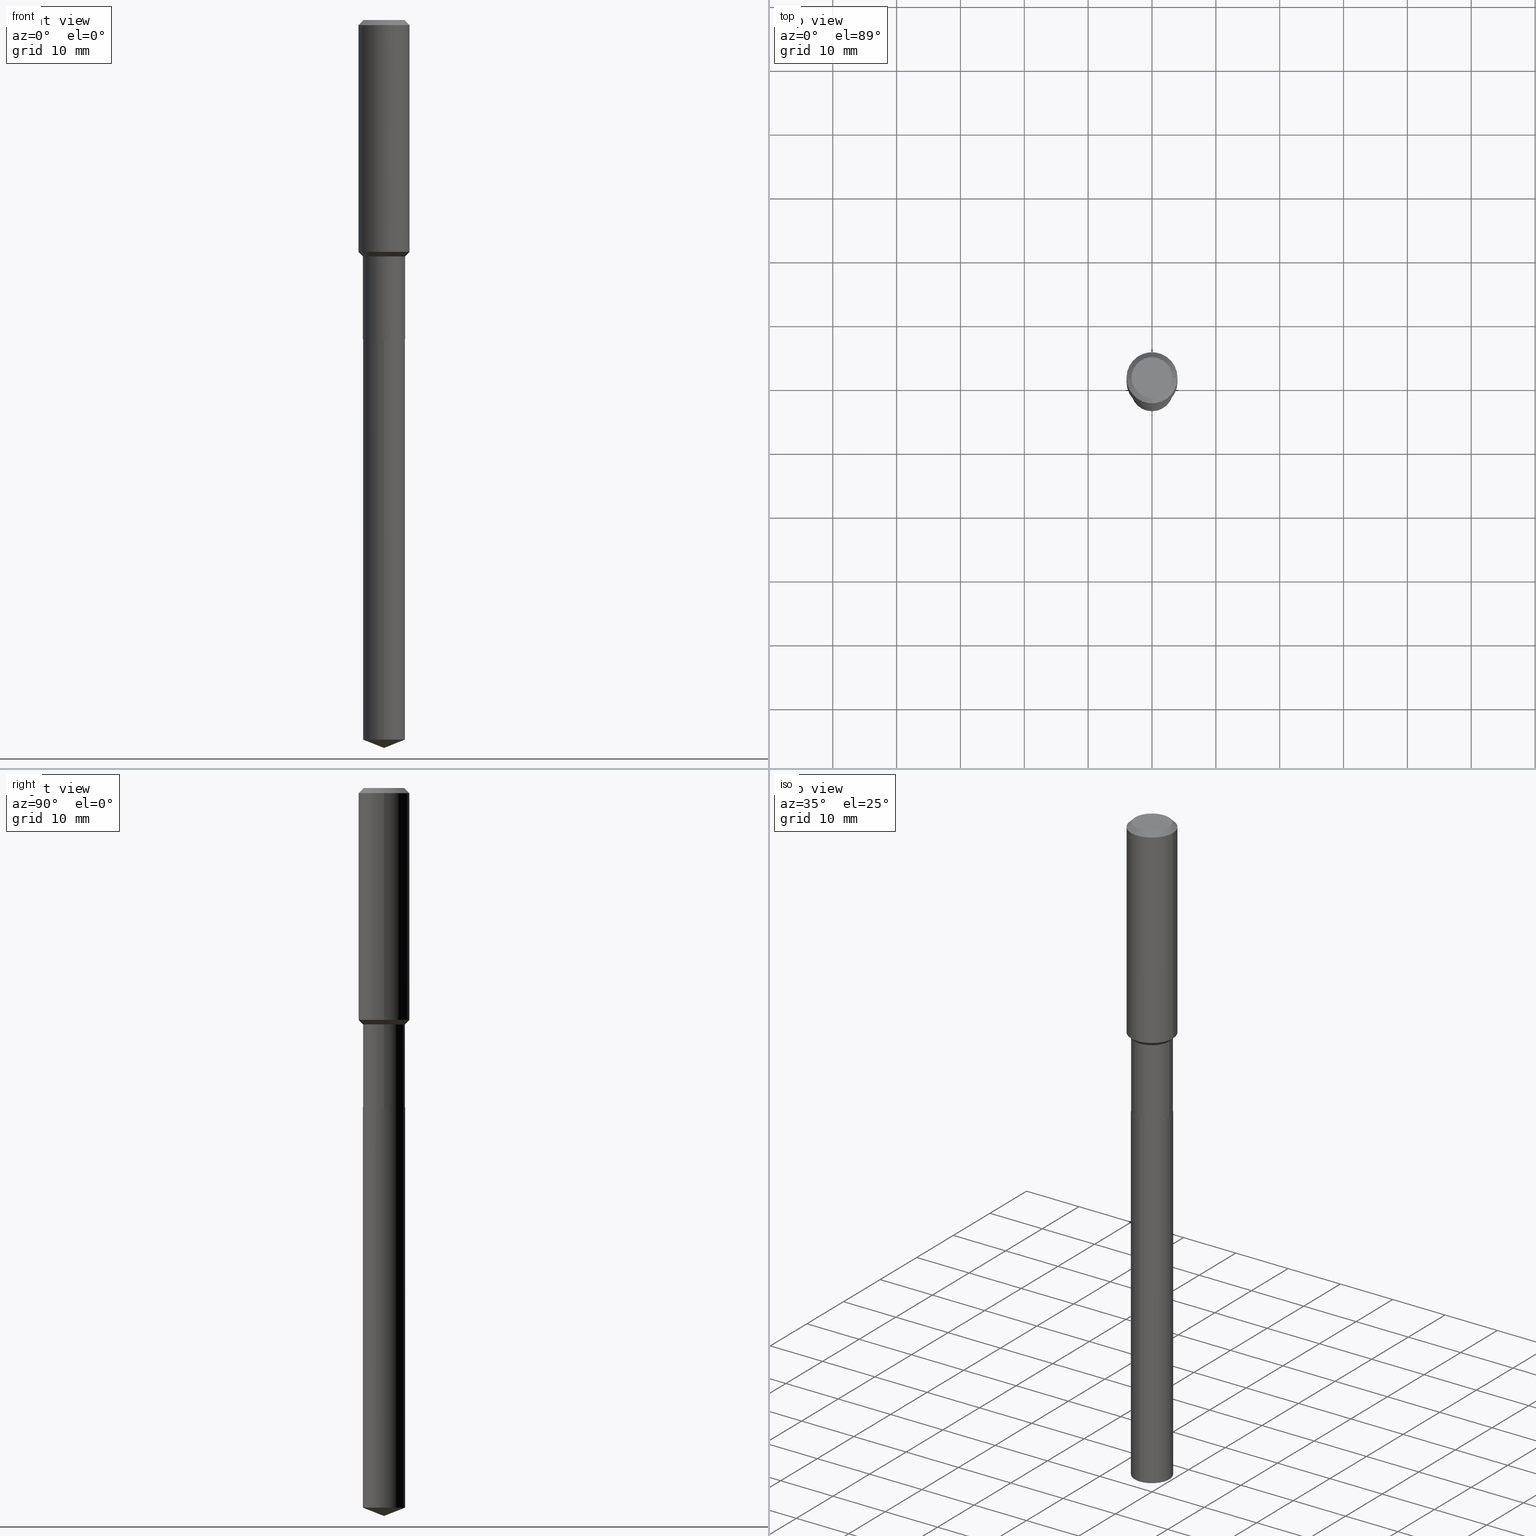
[diagram: canonical four-view strip — front | top / right | iso, engineering-drawing reading convention]
A machine part, canonical four-view strip (front | top / right | iso — engineering-drawing reading convention). The complete STEP part file that produces these views, byte-faithful:
ISO-10303-21;
HEADER;
FILE_DESCRIPTION (( 'STEP AP203' ),
    '1' );
FILE_NAME ('66642.STEP',
    '2024-04-25T02:40:38',
    ( '' ),
    ( '' ),
    'SwSTEP 2.0',
    'SolidWorks 2023',
    '' );
FILE_SCHEMA (( 'CONFIG_CONTROL_DESIGN' ));
ENDSEC;

DATA;
#1 = CARTESIAN_POINT ( 'NONE',  ( -0.1260000000000000009, 9.348441284752484904E-16, 3.860086710906114178E-18 ) ) ;
#2 = VECTOR ( 'NONE', #76, 39.37007874015748143 ) ;
#3 = DIRECTION ( 'NONE',  ( -0.7071067811865451302, 2.468850131082231817E-15, -0.7071067811865499042 ) ) ;
#4 = CARTESIAN_POINT ( 'NONE',  ( 0.1575000000000001676, -6.090889195611863399E-15, -1.429499999999999771 ) ) ;
#5 = PRODUCT_RELATED_PRODUCT_CATEGORY ( 'detail', '', ( #31 ) ) ;
#6 = CARTESIAN_POINT ( 'NONE',  ( 0.1293999999999999873, -7.776576386005333509E-15, -1.968499999999999694 ) ) ;
#7 = MANIFOLD_SOLID_BREP ( 'Body-Move/Copy2[1]', #269 ) ;
#8 = DIRECTION ( 'NONE',  ( -2.445468806185136597E-29, 3.491481338843145583E-15, 1.000000000000000000 ) ) ;
#9 = APPLICATION_PROTOCOL_DEFINITION ( 'international standard', 'config_control_design', 1994, #75 ) ;
#10 = APPROVAL_STATUS ( 'not_yet_approved' ) ;
#11 = ORIENTED_EDGE ( 'NONE', *, *, #37, .F. ) ;
#12 = DIRECTION ( 'NONE',  ( -6.982962677686266711E-15, -1.000000000000000000, 4.206078512185163024E-15 ) ) ;
#13 = AXIS2_PLACEMENT_3D ( 'NONE', #183, #257, #432 ) ;
#14 = AXIS2_PLACEMENT_3D ( 'NONE', #241, #8, #490 ) ;
#15 = ORIENTED_EDGE ( 'NONE', *, *, #231, .F. ) ;
#16 = ORIENTED_EDGE ( 'NONE', *, *, #66, .F. ) ;
#17 = EDGE_CURVE ( 'NONE', #391, #176, #319, .T. ) ;
#18 = EDGE_LOOP ( 'NONE', ( #364, #472, #181 ) ) ;
#19 = AXIS2_PLACEMENT_3D ( 'NONE', #305, #152, #12 ) ;
#20 = EDGE_LOOP ( 'NONE', ( #193, #313 ) ) ;
#21 = DIRECTION ( 'NONE',  ( 0.7071067811865451302, -7.319954787623248157E-15, -0.7071067811865499042 ) ) ;
#22 = ORIENTED_EDGE ( 'NONE', *, *, #260, .T. ) ;
#23 = CARTESIAN_POINT ( 'NONE',  ( 9.229950137524781280E-16, 0.1298999999999845001, -4.437031029217619604 ) ) ;
#24 = PLANE ( 'NONE',  #420 ) ;
#25 = CARTESIAN_POINT ( 'NONE',  ( 0.1293999999999999873, -7.776576386005333509E-15, -1.968499999999999694 ) ) ;
#26 = DATE_AND_TIME ( #175, #256 ) ;
#27 = CONICAL_SURFACE ( 'NONE', #235, 0.1575000000000000011, 0.7853981633974449483 ) ;
#28 = FACE_OUTER_BOUND ( 'NONE', #57, .T. ) ;
#29 = CARTESIAN_POINT ( 'NONE',  ( 0.1298999999999999322, -5.994524310659792457E-15, -1.457100000000000062 ) ) ;
#30 = CARTESIAN_POINT ( 'NONE',  ( 4.813905344975440714E-29, -6.872981015512730918E-15, -1.968499999999999694 ) ) ;
#31 = PRODUCT ( '66642', '66642', '', ( #119 ) ) ;
#32 = VERTEX_POINT ( 'NONE', #105 ) ;
#33 = CARTESIAN_POINT ( 'NONE',  ( 0.1298999999999999599, -9.070868518314457948E-16, 6.334153631758918028E-30 ) ) ;
#34 = CIRCLE ( 'NONE', #462, 0.1298999999999999322 ) ;
#35 = VECTOR ( 'NONE', #219, 39.37007874015748143 ) ;
#36 = DIRECTION ( 'NONE',  ( -2.445468806185136597E-29, 3.491481338843145583E-15, 1.000000000000000000 ) ) ;
#37 = EDGE_CURVE ( 'NONE', #59, #281, #223, .T. ) ;
#38 = DIRECTION ( 'NONE',  ( -2.445397477310179380E-29, 3.491583485851871163E-15, 1.000000000000000000 ) ) ;
#39 = CC_DESIGN_PERSON_AND_ORGANIZATION_ASSIGNMENT ( #206, #460, ( #72 ) ) ;
#40 = ORIENTED_EDGE ( 'NONE', *, *, #97, .F. ) ;
#41 = FACE_OUTER_BOUND ( 'NONE', #210, .T. ) ;
#42 = LINE ( 'NONE', #81, #408 ) ;
#43 = DIRECTION ( 'NONE',  ( 0.000000000000000000, 0.000000000000000000, 1.000000000000000000 ) ) ;
#44 = AXIS2_PLACEMENT_3D ( 'NONE', #435, #400, #77 ) ;
#45 = LINE ( 'NONE', #202, #189 ) ;
#46 = CARTESIAN_POINT ( 'NONE',  ( 7.703226739483228723E-31, -1.099816621735597661E-16, -0.03150000000000019451 ) ) ;
#47 = DIRECTION ( 'NONE',  ( -6.982962677686265922E-15, -1.000000000000000000, 3.498627837350008561E-15 ) ) ;
#48 = APPROVAL_DATE_TIME ( #92, #382 ) ;
#49 = ORIENTED_EDGE ( 'NONE', *, *, #279, .F. ) ;
#50 = ADVANCED_FACE ( 'NONE', ( #474 ), #398, .T. ) ;
#51 = EDGE_CURVE ( 'NONE', #459, #127, #338, .T. ) ;
#52 = APPROVAL_ROLE ( '' ) ;
#53 = VECTOR ( 'NONE', #320, 39.37007874015748143 ) ;
#54 = VECTOR ( 'NONE', #373, 39.37007874015748143 ) ;
#55 = ORIENTED_EDGE ( 'NONE', *, *, #395, .F. ) ;
#56 = PERSON_AND_ORGANIZATION_ROLE ( 'classification_officer' ) ;
#57 = EDGE_LOOP ( 'NONE', ( #369, #94, #233, #49 ) ) ;
#58 = CC_DESIGN_DATE_AND_TIME_ASSIGNMENT ( #251, #284, ( #469 ) ) ;
#59 = VERTEX_POINT ( 'NONE', #113 ) ;
#60 = APPLICATION_CONTEXT ( 'configuration controlled 3d designs of mechanical parts and assemblies' ) ;
#61 = AXIS2_PLACEMENT_3D ( 'NONE', #194, #201, #121 ) ;
#62 = CALENDAR_DATE ( 2024, 24, 4 ) ;
#63 = CLOSED_SHELL ( 'NONE', ( #120, #135, #392, #174, #342, #441, #151, #68, #212, #190, #452, #50 ) ) ;
#64 = CARTESIAN_POINT ( 'NONE',  ( 0.000000000000000000, 0.000000000000000000, 0.000000000000000000 ) ) ;
#65 = ORIENTED_EDGE ( 'NONE', *, *, #128, .F. ) ;
#66 = EDGE_CURVE ( 'NONE', #468, #171, #74, .T. ) ;
#67 = DIRECTION ( 'NONE',  ( -2.445468806185136597E-29, 3.491481338843145583E-15, 1.000000000000000000 ) ) ;
#68 = ADVANCED_FACE ( 'NONE', ( #28 ), #324, .T. ) ;
#69 = CARTESIAN_POINT ( 'NONE',  ( 0.1298999999999999322, -5.994524310659792457E-15, -1.457100000000000062 ) ) ;
#70 = FACE_OUTER_BOUND ( 'NONE', #153, .T. ) ;
#71 = DIRECTION ( 'NONE',  ( 2.445397477310179380E-29, -3.491583485851871163E-15, -1.000000000000000000 ) ) ;
#72 = PRODUCT_DEFINITION_FORMATION_WITH_SPECIFIED_SOURCE ( 'ANY', '', #31, .NOT_KNOWN. ) ;
#73 = DIRECTION ( 'NONE',  ( -2.445468806185136597E-29, 3.491481338843145583E-15, 1.000000000000000000 ) ) ;
#74 = CIRCLE ( 'NONE', #453, 0.1260000000000000009 ) ;
#75 = APPLICATION_CONTEXT ( 'configuration controlled 3d designs of mechanical parts and assemblies' ) ;
#76 = DIRECTION ( 'NONE',  ( 6.611014441532066589E-15, 0.9304175679820270162, 0.3665012267242909183 ) ) ;
#77 = DIRECTION ( 'NONE',  ( 1.000000000000000000, -6.982962677686267499E-15, 0.000000000000000000 ) ) ;
#78 = ORIENTED_EDGE ( 'NONE', *, *, #106, .F. ) ;
#79 = DIRECTION ( 'NONE',  ( -2.445468806185136597E-29, 3.491481338843145583E-15, 1.000000000000000000 ) ) ;
#80 = AXIS2_PLACEMENT_3D ( 'NONE', #203, #43, #455 ) ;
#81 = CARTESIAN_POINT ( 'NONE',  ( 0.1575000000000000844, -1.099816621735587677E-15, 7.679978421878603638E-30 ) ) ;
#82 = LINE ( 'NONE', #310, #247 ) ;
#83 = APPROVAL ( #416, 'UNSPECIFIED' ) ;
#84 = CARTESIAN_POINT ( 'NONE',  ( 0.1298999999999999877, -7.778322126674757379E-15, -1.968000000000000194 ) ) ;
#85 = DIRECTION ( 'NONE',  ( -2.445397477310179660E-29, 3.491583485851871163E-15, 1.000000000000000000 ) ) ;
#86 = DATE_AND_TIME ( #372, #413 ) ;
#87 = CARTESIAN_POINT ( 'NONE',  ( -0.1293999999999999873, -5.950889488265051153E-15, -1.968499999999999694 ) ) ;
#88 = DIRECTION ( 'NONE',  ( -2.445468806185136597E-29, 3.491481338843145583E-15, 1.000000000000000000 ) ) ;
#89 = APPROVAL_PERSON_ORGANIZATION ( #307, #83, #242 ) ;
#90 = CIRCLE ( 'NONE', #14, 0.1293999999999999873 ) ;
#91 = DIRECTION ( 'NONE',  ( -2.445468806185136597E-29, 3.491481338843145583E-15, 1.000000000000000000 ) ) ;
#92 = DATE_AND_TIME ( #124, #336 ) ;
#93 = PERSON_AND_ORGANIZATION ( #184, #197 ) ;
#94 = ORIENTED_EDGE ( 'NONE', *, *, #109, .T. ) ;
#95 = ORIENTED_EDGE ( 'NONE', *, *, #246, .F. ) ;
#96 = CIRCLE ( 'NONE', #454, 0.1298999999999999877 ) ;
#97 = EDGE_CURVE ( 'NONE', #207, #281, #180, .T. ) ;
#98 = ORIENTED_EDGE ( 'NONE', *, *, #422, .F. ) ;
#99 = ORIENTED_EDGE ( 'NONE', *, *, #17, .F. ) ;
#100 = ORIENTED_EDGE ( 'NONE', *, *, #376, .T. ) ;
#101 = AXIS2_PLACEMENT_3D ( 'NONE', #220, #230, #478 ) ;
#102 = COORDINATED_UNIVERSAL_TIME_OFFSET ( 5, 0, .BEHIND. ) ;
#103 = ADVANCED_FACE ( 'NONE', ( #476 ), #24, .F. ) ;
#104 = DIRECTION ( 'NONE',  ( -2.445468806185136597E-29, 3.491481338843145583E-15, 1.000000000000000000 ) ) ;
#105 = CARTESIAN_POINT ( 'NONE',  ( 0.1575000000000000011, -1.209798283909146741E-15, -0.03150000000000019451 ) ) ;
#106 = EDGE_CURVE ( 'NONE', #245, #370, #188, .T. ) ;
#107 = AXIS2_PLACEMENT_3D ( 'NONE', #64, #73, #402 ) ;
#108 = VECTOR ( 'NONE', #340, 39.37007874015748143 ) ;
#109 = EDGE_CURVE ( 'NONE', #370, #245, #243, .T. ) ;
#110 = CARTESIAN_POINT ( 'NONE',  ( 7.703226739483228723E-31, -1.099816621735597661E-16, -0.03150000000000019451 ) ) ;
#111 = CARTESIAN_POINT ( 'NONE',  ( -0.1298999999999999877, -5.056341353083458675E-15, -1.968000000000000194 ) ) ;
#112 = DIRECTION ( 'NONE',  ( 1.000000000000000000, -6.982962677686267499E-15, 4.876176775795936353E-29 ) ) ;
#113 = CARTESIAN_POINT ( 'NONE',  ( 9.229950137524787196E-16, 0.1298999999999931043, -1.968500000000000583 ) ) ;
#114 = CARTESIAN_POINT ( 'NONE',  ( -0.1575000000000000011, 9.898349595620272334E-16, -0.03150000000000019451 ) ) ;
#115 = AXIS2_PLACEMENT_3D ( 'NONE', #140, #394, #484 ) ;
#116 = CARTESIAN_POINT ( 'NONE',  ( -0.1298999999999999599, 9.229950137523698568E-16, -6.389696682241120408E-30 ) ) ;
#117 = ORIENTED_EDGE ( 'NONE', *, *, #458, .T. ) ;
#118 =( NAMED_UNIT ( * ) PLANE_ANGLE_UNIT ( ) SI_UNIT ( $, .RADIAN. ) );
#119 = MECHANICAL_CONTEXT ( 'NONE', #75, 'mechanical' ) ;
#120 = ADVANCED_FACE ( 'NONE', ( #404 ), #430, .T. ) ;
#121 = DIRECTION ( 'NONE',  ( -6.982962677686266711E-15, -1.000000000000000000, 4.206078512185163024E-15 ) ) ;
#122 = DATE_AND_TIME ( #451, #347 ) ;
#123 = CC_DESIGN_PERSON_AND_ORGANIZATION_ASSIGNMENT ( #166, #411, ( #31 ) ) ;
#124 = CALENDAR_DATE ( 2024, 24, 4 ) ;
#125 = VECTOR ( 'NONE', #3, 39.37007874015748143 ) ;
#126 = AXIS2_PLACEMENT_3D ( 'NONE', #365, #85, #335 ) ;
#127 = VERTEX_POINT ( 'NONE', #111 ) ;
#128 = EDGE_CURVE ( 'NONE', #127, #459, #282, .T. ) ;
#129 = VERTEX_POINT ( 'NONE', #6 ) ;
#130 = EDGE_LOOP ( 'NONE', ( #298, #423, #421, #167 ) ) ;
#131 = CC_DESIGN_APPROVAL ( #83, ( #440 ) ) ;
#132 = ORIENTED_EDGE ( 'NONE', *, *, #227, .F. ) ;
#133 = PERSON_AND_ORGANIZATION ( #184, #197 ) ;
#134 = EDGE_LOOP ( 'NONE', ( #483, #302, #132, #15 ) ) ;
#135 = ADVANCED_FACE ( 'NONE', ( #162 ), #216, .T. ) ;
#136 = ORIENTED_EDGE ( 'NONE', *, *, #458, .F. ) ;
#137 = CC_DESIGN_APPROVAL ( #353, ( #469 ) ) ;
#138 = CARTESIAN_POINT ( 'NONE',  ( 7.703226739483228723E-31, -1.099816621735597661E-16, -0.03150000000000019451 ) ) ;
#139 = PLANE ( 'NONE',  #101 ) ;
#140 = CARTESIAN_POINT ( 'NONE',  ( 4.813905344975440714E-29, -6.872981015512730918E-15, -1.968499999999999694 ) ) ;
#141 = FACE_OUTER_BOUND ( 'NONE', #228, .T. ) ;
#142 = FACE_OUTER_BOUND ( 'NONE', #258, .T. ) ;
#143 = DIRECTION ( 'NONE',  ( -2.445468806185136597E-29, 3.491481338843145583E-15, 1.000000000000000000 ) ) ;
#144 = CARTESIAN_POINT ( 'NONE',  ( 1.923075568574986072E-29, -1.101281379113097891E-14, -1.968500000000000139 ) ) ;
#145 = CC_DESIGN_APPROVAL ( #382, ( #72 ) ) ;
#146 = AXIS2_PLACEMENT_3D ( 'NONE', #195, #272, #352 ) ;
#147 = DIRECTION ( 'NONE',  ( 1.000000000000000000, -6.982962677686265133E-15, 0.000000000000000000 ) ) ;
#148 = ORIENTED_EDGE ( 'NONE', *, *, #66, .T. ) ;
#149 = FACE_OUTER_BOUND ( 'NONE', #134, .T. ) ;
#150 = ORIENTED_EDGE ( 'NONE', *, *, #204, .T. ) ;
#151 = ADVANCED_FACE ( 'NONE', ( #415 ), #463, .T. ) ;
#152 = DIRECTION ( 'NONE',  ( -2.445397477310179660E-29, 3.491583485851871163E-15, 1.000000000000000000 ) ) ;
#153 = EDGE_LOOP ( 'NONE', ( #328, #148 ) ) ;
#154 = VECTOR ( 'NONE', #447, 39.37007874015748143 ) ;
#155 = ADVANCED_FACE ( 'NONE', ( #332 ), #412, .T. ) ;
#156 = LENGTH_MEASURE_WITH_UNIT ( LENGTH_MEASURE( 0.02539999999999999897 ), #371 );
#157 = CARTESIAN_POINT ( 'NONE',  ( -9.439721640706201686E-47, 1.347742071746726764E-32, 3.860086710912459732E-18 ) ) ;
#158 = DIRECTION ( 'NONE',  ( -2.445468806185136597E-29, 3.491481338843145583E-15, 1.000000000000000000 ) ) ;
#159 = EDGE_CURVE ( 'NONE', #176, #59, #82, .T. ) ;
#160 = DIRECTION ( 'NONE',  ( -2.445468806185136597E-29, 3.491481338843145583E-15, 1.000000000000000000 ) ) ;
#161 = COORDINATED_UNIVERSAL_TIME_OFFSET ( 5, 0, .BEHIND. ) ;
#162 = FACE_OUTER_BOUND ( 'NONE', #485, .T. ) ;
#163 = ORIENTED_EDGE ( 'NONE', *, *, #224, .F. ) ;
#164 = AXIS2_PLACEMENT_3D ( 'NONE', #295, #221, #439 ) ;
#165 = EDGE_CURVE ( 'NONE', #169, #370, #236, .T. ) ;
#166 = PERSON_AND_ORGANIZATION ( #184, #197 ) ;
#167 = ORIENTED_EDGE ( 'NONE', *, *, #388, .F. ) ;
#168 = ORIENTED_EDGE ( 'NONE', *, *, #165, .T. ) ;
#169 = VERTEX_POINT ( 'NONE', #443 ) ;
#170 = EDGE_CURVE ( 'NONE', #127, #169, #448, .T. ) ;
#171 = VERTEX_POINT ( 'NONE', #1 ) ;
#172 = LINE ( 'NONE', #25, #356 ) ;
#173 = DESIGN_CONTEXT ( 'detailed design', #60, 'design' ) ;
#174 = ADVANCED_FACE ( 'NONE', ( #41 ), #436, .T. ) ;
#175 = CALENDAR_DATE ( 2024, 24, 4 ) ;
#176 = VERTEX_POINT ( 'NONE', #23 ) ;
#177 = CC_DESIGN_PERSON_AND_ORGANIZATION_ASSIGNMENT ( #93, #199, ( #440 ) ) ;
#178 = FACE_OUTER_BOUND ( 'NONE', #488, .T. ) ;
#179 = CARTESIAN_POINT ( 'NONE',  ( -9.070868518313371293E-16, -0.1299000000000154198, -4.437031029217618716 ) ) ;
#180 = LINE ( 'NONE', #259, #35 ) ;
#181 = ORIENTED_EDGE ( 'NONE', *, *, #283, .F. ) ;
#182 = DIRECTION ( 'NONE',  ( -2.445468806185136597E-29, 3.491481338843145583E-15, 1.000000000000000000 ) ) ;
#183 = CARTESIAN_POINT ( 'NONE',  ( 4.813905344975440714E-29, -6.872981015512730918E-15, -1.968499999999999694 ) ) ;
#184 = PERSON ( 'UNSPECIFIED', 'UNSPECIFIED', 'UNSPECIFIED', ('UNSPECIFIED'), ('UNSPECIFIED'), ('UNSPECIFIED') ) ;
#185 = AXIS2_PLACEMENT_3D ( 'NONE', #334, #299, #112 ) ;
#186 = EDGE_LOOP ( 'NONE', ( #191, #22, #100, #65 ) ) ;
#187 = DIRECTION ( 'NONE',  ( 1.000000000000000000, -6.982962677686265922E-15, 4.876176775795935793E-29 ) ) ;
#188 = CIRCLE ( 'NONE', #164, 0.1575000000000001676 ) ;
#189 = VECTOR ( 'NONE', #205, 39.37007874015748143 ) ;
#190 = ADVANCED_FACE ( 'NONE', ( #70 ), #139, .F. ) ;
#191 = ORIENTED_EDGE ( 'NONE', *, *, #456, .F. ) ;
#192 = DIRECTION ( 'NONE',  ( 1.000000000000000000, -6.982962677686263555E-15, 0.000000000000000000 ) ) ;
#193 = ORIENTED_EDGE ( 'NONE', *, *, #487, .T. ) ;
#194 = CARTESIAN_POINT ( 'NONE',  ( 4.813905344975441835E-29, -6.872981015512731707E-15, -1.968500000000000139 ) ) ;
#195 = CARTESIAN_POINT ( 'NONE',  ( 3.563292597492362932E-29, -5.087437458828347648E-15, -1.457100000000000062 ) ) ;
#196 = CARTESIAN_POINT ( 'NONE',  ( 0.000000000000000000, 0.000000000000000000, 0.000000000000000000 ) ) ;
#197 = ORGANIZATION ( 'UNSPECIFIED', 'UNSPECIFIED', '' ) ;
#198 = DIRECTION ( 'NONE',  ( -2.445468806185136877E-29, 3.491481338843145188E-15, 1.000000000000000000 ) ) ;
#199 = PERSON_AND_ORGANIZATION_ROLE ( 'creator' ) ;
#200 = AXIS2_PLACEMENT_3D ( 'NONE', #46, #238, #407 ) ;
#201 = DIRECTION ( 'NONE',  ( -2.445397477310179660E-29, 3.491583485851871163E-15, 1.000000000000000000 ) ) ;
#202 = CARTESIAN_POINT ( 'NONE',  ( -0.1575000000000000844, 1.119104808822158392E-15, -7.747322767151481189E-30 ) ) ;
#203 = CARTESIAN_POINT ( 'NONE',  ( 0.000000000000000000, 0.000000000000000000, 0.000000000000000000 ) ) ;
#204 = EDGE_CURVE ( 'NONE', #330, #245, #355, .T. ) ;
#205 = DIRECTION ( 'NONE',  ( -2.445468806185136877E-29, 3.491481338843145188E-15, 1.000000000000000000 ) ) ;
#206 = PERSON_AND_ORGANIZATION ( #184, #197 ) ;
#207 = VERTEX_POINT ( 'NONE', #179 ) ;
#208 = CARTESIAN_POINT ( 'NONE',  ( 3.563292597492362932E-29, -5.087437458828347648E-15, -1.457100000000000062 ) ) ;
#209 = AXIS2_PLACEMENT_3D ( 'NONE', #377, #379, #47 ) ;
#210 = EDGE_LOOP ( 'NONE', ( #286, #168, #78, #253 ) ) ;
#211 = CIRCLE ( 'NONE', #473, 0.1260000000000000009 ) ;
#212 = ADVANCED_FACE ( 'NONE', ( #142 ), #27, .T. ) ;
#213 = EDGE_LOOP ( 'NONE', ( #351, #384, #150, #237 ) ) ;
#214 = ADVANCED_FACE ( 'NONE', ( #403 ), #414, .T. ) ;
#215 = ORIENTED_EDGE ( 'NONE', *, *, #159, .F. ) ;
#216 = CONICAL_SURFACE ( 'NONE', #200, 0.1575000000000000011, 0.7853981633974449483 ) ;
#217 = CARTESIAN_POINT ( 'NONE',  ( -0.1575000000000001676, -3.871967765054116737E-15, -1.429499999999999771 ) ) ;
#218 = ORIENTED_EDGE ( 'NONE', *, *, #170, .T. ) ;
#219 = DIRECTION ( 'NONE',  ( -2.445397477310179380E-29, 3.491583485851871163E-15, 1.000000000000000000 ) ) ;
#220 = CARTESIAN_POINT ( 'NONE',  ( -4.719860820353100843E-47, 6.738710358733633822E-33, 1.930043355456229866E-18 ) ) ;
#221 = DIRECTION ( 'NONE',  ( -2.445468806185136597E-29, 3.491481338843145583E-15, 1.000000000000000000 ) ) ;
#222 = AXIS2_PLACEMENT_3D ( 'NONE', #471, #477, #389 ) ;
#223 = CIRCLE ( 'NONE', #383, 0.1298999999999999877 ) ;
#224 = EDGE_CURVE ( 'NONE', #129, #417, #90, .T. ) ;
#225 = DIRECTION ( 'NONE',  ( -2.445468806185136597E-29, 3.491481338843145583E-15, 1.000000000000000000 ) ) ;
#226 = CARTESIAN_POINT ( 'NONE',  ( -9.070868518313978715E-16, -0.1299000000000068711, -1.968499999999999472 ) ) ;
#227 = EDGE_CURVE ( 'NONE', #32, #386, #288, .T. ) ;
#228 = EDGE_LOOP ( 'NONE', ( #426, #401, #314, #40 ) ) ;
#229 = CYLINDRICAL_SURFACE ( 'NONE', #185, 0.1575000000000000844 ) ;
#230 = DIRECTION ( 'NONE',  ( 2.438088387897960049E-29, -3.491481338843145188E-15, -1.000000000000000000 ) ) ;
#231 = EDGE_CURVE ( 'NONE', #245, #32, #42, .T. ) ;
#232 = DIRECTION ( 'NONE',  ( 1.000000000000000000, -6.982962677686265922E-15, 4.876281427513067258E-29 ) ) ;
#233 = ORIENTED_EDGE ( 'NONE', *, *, #231, .T. ) ;
#234 = DIRECTION ( 'NONE',  ( 1.000000000000000000, -6.982962677686266711E-15, 4.876176775795935232E-29 ) ) ;
#235 = AXIS2_PLACEMENT_3D ( 'NONE', #110, #294, #291 ) ;
#236 = LINE ( 'NONE', #300, #108 ) ;
#237 = ORIENTED_EDGE ( 'NONE', *, *, #109, .F. ) ;
#238 = DIRECTION ( 'NONE',  ( 2.445468806185136597E-29, -3.491481338843145583E-15, -1.000000000000000000 ) ) ;
#239 = DIRECTION ( 'NONE',  ( -0.7071067811868130271, 7.493145998871311837E-15, 0.7071067811862817853 ) ) ;
#240 = CIRCLE ( 'NONE', #61, 0.1298999999999999877 ) ;
#241 = CARTESIAN_POINT ( 'NONE',  ( 4.813905344975440714E-29, -6.872981015512730918E-15, -1.968499999999999694 ) ) ;
#242 = APPROVAL_ROLE ( '' ) ;
#243 = CIRCLE ( 'NONE', #44, 0.1575000000000001676 ) ;
#244 = PERSON_AND_ORGANIZATION ( #184, #197 ) ;
#245 = VERTEX_POINT ( 'NONE', #4 ) ;
#246 = EDGE_CURVE ( 'NONE', #171, #468, #211, .T. ) ;
#247 = VECTOR ( 'NONE', #38, 39.37007874015748143 ) ;
#248 = ADVANCED_FACE ( 'NONE', ( #450 ), #296, .T. ) ;
#249 = CARTESIAN_POINT ( 'NONE',  ( 4.813905344975440714E-29, -6.872981015512730918E-15, -1.968499999999999694 ) ) ;
#250 = EDGE_CURVE ( 'NONE', #370, #386, #45, .T. ) ;
#251 = DATE_AND_TIME ( #62, #367 ) ;
#252 = EDGE_LOOP ( 'NONE', ( #99, #466, #344 ) ) ;
#253 = ORIENTED_EDGE ( 'NONE', *, *, #204, .F. ) ;
#254 =( GEOMETRIC_REPRESENTATION_CONTEXT ( 3 ) GLOBAL_UNCERTAINTY_ASSIGNED_CONTEXT ( ( #359 ) ) GLOBAL_UNIT_ASSIGNED_CONTEXT ( ( #410, #118, #467 ) ) REPRESENTATION_CONTEXT ( 'NONE', 'WORKASPACE' ) );
#255 = AXIS2_PLACEMENT_3D ( 'NONE', #297, #79, #397 ) ;
#256 = LOCAL_TIME ( 22, 40, 38.00000000000000000, #102 ) ;
#257 = DIRECTION ( 'NONE',  ( -2.445397477310179660E-29, 3.491583485851871163E-15, 1.000000000000000000 ) ) ;
#258 = EDGE_LOOP ( 'NONE', ( #343, #95, #117, #346 ) ) ;
#259 = CARTESIAN_POINT ( 'NONE',  ( -9.070868518313978715E-16, -0.1299000000000068711, -1.968499999999999250 ) ) ;
#260 = EDGE_CURVE ( 'NONE', #417, #129, #301, .T. ) ;
#261 = CARTESIAN_POINT ( 'NONE',  ( -0.1575000000000000011, -1.431422309202759493E-15, -0.03150000000000019451 ) ) ;
#262 = AXIS2_PLACEMENT_3D ( 'NONE', #138, #104, #399 ) ;
#263 = EDGE_CURVE ( 'NONE', #468, #32, #437, .T. ) ;
#264 = AXIS2_PLACEMENT_3D ( 'NONE', #30, #266, #147 ) ;
#265 = DIRECTION ( 'NONE',  ( 6.982962677686265922E-15, 1.000000000000000000, -3.491583485851871163E-15 ) ) ;
#266 = DIRECTION ( 'NONE',  ( -2.445468806185136597E-29, 3.491481338843145583E-15, 1.000000000000000000 ) ) ;
#267 = CARTESIAN_POINT ( 'NONE',  ( 1.136379234426400663E-28, -1.512435428908050663E-14, -4.488199999999999079 ) ) ;
#268 = APPROVAL_PERSON_ORGANIZATION ( #244, #382, #52 ) ;
#269 = CLOSED_SHELL ( 'NONE', ( #270, #248, #214, #155, #103 ) ) ;
#270 = ADVANCED_FACE ( 'NONE', ( #141 ), #396, .T. ) ;
#271 = LINE ( 'NONE', #329, #434 ) ;
#272 = DIRECTION ( 'NONE',  ( -2.445468806185136597E-29, 3.491481338843145583E-15, 1.000000000000000000 ) ) ;
#273 = DATE_TIME_ROLE ( 'creation_date' ) ;
#274 = ORIENTED_EDGE ( 'NONE', *, *, #260, .F. ) ;
#275 = DIRECTION ( 'NONE',  ( -2.438088387897960049E-29, 3.491481338843145188E-15, 1.000000000000000000 ) ) ;
#276 = AXIS2_PLACEMENT_3D ( 'NONE', #249, #182, #428 ) ;
#277 = AXIS2_PLACEMENT_3D ( 'NONE', #406, #88, #304 ) ;
#278 = DIRECTION ( 'NONE',  ( 1.000000000000000000, -6.982962677686268288E-15, 0.000000000000000000 ) ) ;
#279 = EDGE_CURVE ( 'NONE', #386, #32, #327, .T. ) ;
#280 = APPLICATION_PROTOCOL_DEFINITION ( 'international standard', 'config_control_design', 1994, #60 ) ;
#281 = VERTEX_POINT ( 'NONE', #226 ) ;
#282 = CIRCLE ( 'NONE', #375, 0.1298999999999999877 ) ;
#283 = EDGE_CURVE ( 'NONE', #207, #176, #96, .T. ) ;
#284 = DATE_TIME_ROLE ( 'classification_date' ) ;
#285 = EDGE_LOOP ( 'NONE', ( #316, #333, #464, #418 ) ) ;
#286 = ORIENTED_EDGE ( 'NONE', *, *, #422, .T. ) ;
#287 = CIRCLE ( 'NONE', #222, 0.1298999999999999877 ) ;
#288 = CIRCLE ( 'NONE', #277, 0.1575000000000000011 ) ;
#289 = LINE ( 'NONE', #354, #53 ) ;
#290 = DIRECTION ( 'NONE',  ( 0.7071067811868130271, -2.468850131085038979E-15, 0.7071067811862817853 ) ) ;
#291 = DIRECTION ( 'NONE',  ( -1.000000000000000000, 6.982962677686265922E-15, 0.000000000000000000 ) ) ;
#292 = CARTESIAN_POINT ( 'NONE',  ( 0.000000000000000000, 0.000000000000000000, 0.000000000000000000 ) ) ;
#293 = DIRECTION ( 'NONE',  ( 1.000000000000000000, -6.982962677686263555E-15, 0.000000000000000000 ) ) ;
#294 = DIRECTION ( 'NONE',  ( 2.445468806185136597E-29, -3.491481338843145583E-15, -1.000000000000000000 ) ) ;
#295 = CARTESIAN_POINT ( 'NONE',  ( 3.495797658441652397E-29, -4.991072573876276707E-15, -1.429499999999999771 ) ) ;
#296 = CONICAL_SURFACE ( 'NONE', #209, 99.94676754583984746, 1.195550537616119069 ) ;
#297 = CARTESIAN_POINT ( 'NONE',  ( 4.812682610572349594E-29, -6.871235274843310993E-15, -1.968000000000000194 ) ) ;
#298 = ORIENTED_EDGE ( 'NONE', *, *, #170, .F. ) ;
#299 = DIRECTION ( 'NONE',  ( -2.445468806185136597E-29, 3.491481338843145583E-15, 1.000000000000000000 ) ) ;
#300 = CARTESIAN_POINT ( 'NONE',  ( -0.1298999999999999322, -4.164442445075978186E-15, -1.457100000000000062 ) ) ;
#301 = CIRCLE ( 'NONE', #276, 0.1293999999999999873 ) ;
#302 = ORIENTED_EDGE ( 'NONE', *, *, #250, .T. ) ;
#303 = CARTESIAN_POINT ( 'NONE',  ( 0.1260000000000000009, -1.027466422270894443E-15, 3.860086710919128072E-18 ) ) ;
#304 = DIRECTION ( 'NONE',  ( 1.000000000000000000, -6.982962677686265922E-15, 0.000000000000000000 ) ) ;
#305 = CARTESIAN_POINT ( 'NONE',  ( 4.813905344975440714E-29, -6.872981015512730918E-15, -1.968499999999999694 ) ) ;
#306 = DIRECTION ( 'NONE',  ( 1.000000000000000000, -6.982962677686265922E-15, 4.876281427513067258E-29 ) ) ;
#307 = PERSON_AND_ORGANIZATION ( #184, #197 ) ;
#308 = DIRECTION ( 'NONE',  ( 1.000000000000000000, -6.982962677686263555E-15, 0.000000000000000000 ) ) ;
#309 = COORDINATED_UNIVERSAL_TIME_OFFSET ( 5, 0, .BEHIND. ) ;
#310 = CARTESIAN_POINT ( 'NONE',  ( 9.229950137524181746E-16, 0.1298999999999931043, -1.968500000000000361 ) ) ;
#311 = APPROVAL_PERSON_ORGANIZATION ( #133, #353, #429 ) ;
#312 = CC_DESIGN_PERSON_AND_ORGANIZATION_ASSIGNMENT ( #385, #465, ( #72 ) ) ;
#313 = ORIENTED_EDGE ( 'NONE', *, *, #37, .T. ) ;
#314 = ORIENTED_EDGE ( 'NONE', *, *, #487, .F. ) ;
#315 = SECURITY_CLASSIFICATION_LEVEL ( 'unclassified' ) ;
#316 = ORIENTED_EDGE ( 'NONE', *, *, #224, .T. ) ;
#317 = APPROVAL_STATUS ( 'not_yet_approved' ) ;
#318 = CC_DESIGN_SECURITY_CLASSIFICATION ( #469, ( #72 ) ) ;
#319 = LINE ( 'NONE', #267, #2 ) ;
#320 = DIRECTION ( 'NONE',  ( -6.497071151882118258E-15, -0.9304175679820244627, 0.3665012267242974686 ) ) ;
#321 = CARTESIAN_POINT ( 'NONE',  ( 4.813905344975441835E-29, -6.872981015512731707E-15, -1.968500000000000139 ) ) ;
#322 = DIRECTION ( 'NONE',  ( -2.445397477310179660E-29, 3.491583485851871163E-15, 1.000000000000000000 ) ) ;
#323 = EDGE_CURVE ( 'NONE', #176, #207, #287, .T. ) ;
#324 = CYLINDRICAL_SURFACE ( 'NONE', #358, 0.1575000000000000844 ) ;
#325 = MANIFOLD_SOLID_BREP ( 'Body-Move/Copy2[2]', #63 ) ;
#326 = CYLINDRICAL_SURFACE ( 'NONE', #107, 0.1298999999999999599 ) ;
#327 = CIRCLE ( 'NONE', #262, 0.1575000000000000011 ) ;
#328 = ORIENTED_EDGE ( 'NONE', *, *, #246, .T. ) ;
#329 = CARTESIAN_POINT ( 'NONE',  ( -0.1293999999999999873, -5.953538715439161566E-15, -1.968499999999999694 ) ) ;
#330 = VERTEX_POINT ( 'NONE', #69 ) ;
#331 = FACE_OUTER_BOUND ( 'NONE', #461, .T. ) ;
#332 = FACE_OUTER_BOUND ( 'NONE', #446, .T. ) ;
#333 = ORIENTED_EDGE ( 'NONE', *, *, #456, .T. ) ;
#334 = CARTESIAN_POINT ( 'NONE',  ( 0.000000000000000000, 0.000000000000000000, 0.000000000000000000 ) ) ;
#335 = DIRECTION ( 'NONE',  ( -6.982962677686265922E-15, -1.000000000000000000, 3.498627837350008561E-15 ) ) ;
#336 = LOCAL_TIME ( 22, 40, 38.00000000000000000, #309 ) ;
#337 = PLANE ( 'NONE',  #427 ) ;
#338 = CIRCLE ( 'NONE', #255, 0.1298999999999999877 ) ;
#339 = LINE ( 'NONE', #114, #125 ) ;
#340 = DIRECTION ( 'NONE',  ( -0.7071067811865471286, 7.493145998870352582E-15, 0.7071067811865479058 ) ) ;
#341 = ORIENTED_EDGE ( 'NONE', *, *, #323, .T. ) ;
#342 = ADVANCED_FACE ( 'NONE', ( #178 ), #326, .T. ) ;
#343 = ORIENTED_EDGE ( 'NONE', *, *, #263, .F. ) ;
#344 = ORIENTED_EDGE ( 'NONE', *, *, #323, .F. ) ;
#345 = PERSON_AND_ORGANIZATION ( #184, #197 ) ;
#346 = ORIENTED_EDGE ( 'NONE', *, *, #279, .T. ) ;
#347 = LOCAL_TIME ( 22, 40, 38.00000000000000000, #380 ) ;
#348 = ORIENTED_EDGE ( 'NONE', *, *, #97, .T. ) ;
#349 = CARTESIAN_POINT ( 'NONE',  ( 0.1575000000000000011, -1.190510096822576026E-15, -0.03150000000000019451 ) ) ;
#350 = EDGE_CURVE ( 'NONE', #391, #207, #289, .T. ) ;
#351 = ORIENTED_EDGE ( 'NONE', *, *, #165, .F. ) ;
#352 = DIRECTION ( 'NONE',  ( 1.000000000000000000, -6.982962677686263555E-15, 0.000000000000000000 ) ) ;
#353 = APPROVAL ( #317, 'UNSPECIFIED' ) ;
#354 = CARTESIAN_POINT ( 'NONE',  ( 1.059404549109931292E-28, -1.621709356054687186E-14, -4.488199999999999079 ) ) ;
#355 = LINE ( 'NONE', #29, #368 ) ;
#356 = VECTOR ( 'NONE', #290, 39.37007874015748854 ) ;
#357 = CARTESIAN_POINT ( 'NONE',  ( -9.439721640706201686E-47, 1.347742071746726764E-32, 3.860086710912459732E-18 ) ) ;
#358 = AXIS2_PLACEMENT_3D ( 'NONE', #292, #225, #479 ) ;
#359 = UNCERTAINTY_MEASURE_WITH_UNIT (LENGTH_MEASURE( 1.000000000000000082E-05 ), #410, 'distance_accuracy_value', 'NONE');
#360 = CARTESIAN_POINT ( 'NONE',  ( 3.563292597492362932E-29, -5.087437458828347648E-15, -1.457100000000000062 ) ) ;
#361 = APPROVAL_DATE_TIME ( #26, #353 ) ;
#362 = DIRECTION ( 'NONE',  ( -6.982962677686266711E-15, -1.000000000000000000, 4.206078512185163024E-15 ) ) ;
#363 = DIRECTION ( 'NONE',  ( -2.445397477310179660E-29, 3.491583485851871163E-15, 1.000000000000000000 ) ) ;
#364 = ORIENTED_EDGE ( 'NONE', *, *, #350, .F. ) ;
#365 = CARTESIAN_POINT ( 'NONE',  ( -8.529991786413033970E-28, 1.217931928410080037E-13, 34.88187874015748235 ) ) ;
#366 = CARTESIAN_POINT ( 'NONE',  ( 4.812682610572349594E-29, -6.871235274843310993E-15, -1.968000000000000194 ) ) ;
#367 = LOCAL_TIME ( 22, 40, 38.00000000000000000, #390 ) ;
#368 = VECTOR ( 'NONE', #482, 39.37007874015748143 ) ;
#369 = ORIENTED_EDGE ( 'NONE', *, *, #250, .F. ) ;
#370 = VERTEX_POINT ( 'NONE', #217 ) ;
#371 =( LENGTH_UNIT ( ) NAMED_UNIT ( * ) SI_UNIT ( $, .METRE. ) );
#372 = CALENDAR_DATE ( 2024, 24, 4 ) ;
#373 = DIRECTION ( 'NONE',  ( -2.445468806185136877E-29, 3.491481338843145188E-15, 1.000000000000000000 ) ) ;
#374 = CARTESIAN_POINT ( 'NONE',  ( 1.097543295766354916E-28, -1.567092500120036717E-14, -4.488199999999999967 ) ) ;
#375 = AXIS2_PLACEMENT_3D ( 'NONE', #366, #36, #278 ) ;
#376 = EDGE_CURVE ( 'NONE', #129, #459, #172, .T. ) ;
#377 = CARTESIAN_POINT ( 'NONE',  ( -8.529991786413033970E-28, 1.217931928410080037E-13, 34.88187874015748235 ) ) ;
#378 = ADVANCED_BREP_SHAPE_REPRESENTATION ( '66642', ( #7, #325, #80 ), #254 ) ;
#379 = DIRECTION ( 'NONE',  ( -2.445397477310179660E-29, 3.491583485851871163E-15, 1.000000000000000000 ) ) ;
#380 = COORDINATED_UNIVERSAL_TIME_OFFSET ( 5, 0, .BEHIND. ) ;
#381 = ORIENTED_EDGE ( 'NONE', *, *, #227, .T. ) ;
#382 = APPROVAL ( #10, 'UNSPECIFIED' ) ;
#383 = AXIS2_PLACEMENT_3D ( 'NONE', #321, #363, #362 ) ;
#384 = ORIENTED_EDGE ( 'NONE', *, *, #388, .T. ) ;
#385 = PERSON_AND_ORGANIZATION ( #184, #197 ) ;
#386 = VERTEX_POINT ( 'NONE', #261 ) ;
#387 = VECTOR ( 'NONE', #21, 39.37007874015748143 ) ;
#388 = EDGE_CURVE ( 'NONE', #169, #330, #34, .T. ) ;
#389 = DIRECTION ( 'NONE',  ( -6.982962677686266711E-15, -1.000000000000000000, 4.206078512185163024E-15 ) ) ;
#390 = COORDINATED_UNIVERSAL_TIME_OFFSET ( 5, 0, .BEHIND. ) ;
#391 = VERTEX_POINT ( 'NONE', #374 ) ;
#392 = ADVANCED_FACE ( 'NONE', ( #149 ), #229, .T. ) ;
#393 = CARTESIAN_POINT ( 'NONE',  ( 1.085044489648610678E-28, -1.549206319144189392E-14, -4.437031029217618716 ) ) ;
#394 = DIRECTION ( 'NONE',  ( -2.445468806185136597E-29, 3.491481338843145583E-15, 1.000000000000000000 ) ) ;
#395 = EDGE_CURVE ( 'NONE', #459, #330, #409, .T. ) ;
#396 = CYLINDRICAL_SURFACE ( 'NONE', #13, 0.1298999999999999877 ) ;
#397 = DIRECTION ( 'NONE',  ( 1.000000000000000000, -6.982962677686268288E-15, 0.000000000000000000 ) ) ;
#398 = CONICAL_SURFACE ( 'NONE', #115, 0.1293999999999999873, 0.7853981633978239785 ) ;
#399 = DIRECTION ( 'NONE',  ( 1.000000000000000000, -6.982962677686265922E-15, 0.000000000000000000 ) ) ;
#400 = DIRECTION ( 'NONE',  ( -2.445468806185136597E-29, 3.491481338843145583E-15, 1.000000000000000000 ) ) ;
#401 = ORIENTED_EDGE ( 'NONE', *, *, #159, .T. ) ;
#402 = DIRECTION ( 'NONE',  ( 1.000000000000000000, -6.982962677686266711E-15, 4.876176775795935232E-29 ) ) ;
#403 = FACE_OUTER_BOUND ( 'NONE', #252, .T. ) ;
#404 = FACE_OUTER_BOUND ( 'NONE', #285, .T. ) ;
#405 = DIRECTION ( 'NONE',  ( -2.445468806185136597E-29, 3.491481338843145583E-15, 1.000000000000000000 ) ) ;
#406 = CARTESIAN_POINT ( 'NONE',  ( 7.703226739483228723E-31, -1.099816621735597661E-16, -0.03150000000000019451 ) ) ;
#407 = DIRECTION ( 'NONE',  ( -1.000000000000000000, 6.982962677686265922E-15, 0.000000000000000000 ) ) ;
#408 = VECTOR ( 'NONE', #198, 39.37007874015748143 ) ;
#409 = LINE ( 'NONE', #33, #154 ) ;
#410 =( CONVERSION_BASED_UNIT ( 'INCH', #156 ) LENGTH_UNIT ( ) NAMED_UNIT ( #425 ) );
#411 = PERSON_AND_ORGANIZATION_ROLE ( 'design_owner' ) ;
#412 = CYLINDRICAL_SURFACE ( 'NONE', #19, 0.1298999999999999877 ) ;
#413 = LOCAL_TIME ( 22, 40, 38.00000000000000000, #161 ) ;
#414 = CONICAL_SURFACE ( 'NONE', #126, 99.94676754583984746, 1.195550537616119069 ) ;
#415 = FACE_OUTER_BOUND ( 'NONE', #213, .T. ) ;
#416 = APPROVAL_STATUS ( 'not_yet_approved' ) ;
#417 = VERTEX_POINT ( 'NONE', #87 ) ;
#418 = ORIENTED_EDGE ( 'NONE', *, *, #376, .F. ) ;
#419 = AXIS2_PLACEMENT_3D ( 'NONE', #196, #405, #234 ) ;
#420 = AXIS2_PLACEMENT_3D ( 'NONE', #144, #71, #265 ) ;
#421 = ORIENTED_EDGE ( 'NONE', *, *, #395, .T. ) ;
#422 = EDGE_CURVE ( 'NONE', #330, #169, #444, .T. ) ;
#423 = ORIENTED_EDGE ( 'NONE', *, *, #128, .T. ) ;
#424 = ORIENTED_EDGE ( 'NONE', *, *, #51, .T. ) ;
#425 = DIMENSIONAL_EXPONENTS ( 1.000000000000000000, 0.000000000000000000, 0.000000000000000000, 0.000000000000000000, 0.000000000000000000, 0.000000000000000000, 0.000000000000000000 ) ;
#426 = ORIENTED_EDGE ( 'NONE', *, *, #283, .T. ) ;
#427 = AXIS2_PLACEMENT_3D ( 'NONE', #486, #275, #187 ) ;
#428 = DIRECTION ( 'NONE',  ( 1.000000000000000000, -6.982962677686265133E-15, 0.000000000000000000 ) ) ;
#429 = APPROVAL_ROLE ( '' ) ;
#430 = CONICAL_SURFACE ( 'NONE', #264, 0.1293999999999999873, 0.7853981633978239785 ) ;
#431 = ORIENTED_EDGE ( 'NONE', *, *, #263, .T. ) ;
#432 = DIRECTION ( 'NONE',  ( -6.982962677686266711E-15, -1.000000000000000000, 4.206078512185163024E-15 ) ) ;
#433 = SHAPE_DEFINITION_REPRESENTATION ( #438, #378 ) ;
#434 = VECTOR ( 'NONE', #239, 39.37007874015748854 ) ;
#435 = CARTESIAN_POINT ( 'NONE',  ( 3.495797658441652397E-29, -4.991072573876276707E-15, -1.429499999999999771 ) ) ;
#436 = CONICAL_SURFACE ( 'NONE', #146, 0.1298999999999999322, 0.7853981633974477239 ) ;
#437 = LINE ( 'NONE', #349, #387 ) ;
#438 = PRODUCT_DEFINITION_SHAPE ( 'NONE', 'NONE',  #440 ) ;
#439 = DIRECTION ( 'NONE',  ( 1.000000000000000000, -6.982962677686267499E-15, 0.000000000000000000 ) ) ;
#440 = PRODUCT_DEFINITION ( 'UNKNOWN', '', #72, #173 ) ;
#441 = ADVANCED_FACE ( 'NONE', ( #449 ), #442, .T. ) ;
#442 = CYLINDRICAL_SURFACE ( 'NONE', #419, 0.1298999999999999599 ) ;
#443 = CARTESIAN_POINT ( 'NONE',  ( -0.1298999999999999322, -5.056341353083459464E-15, -1.457100000000000062 ) ) ;
#444 = CIRCLE ( 'NONE', #481, 0.1298999999999999322 ) ;
#445 = AXIS2_PLACEMENT_3D ( 'NONE', #208, #158, #308 ) ;
#446 = EDGE_LOOP ( 'NONE', ( #215, #341, #348, #11 ) ) ;
#447 = DIRECTION ( 'NONE',  ( -2.445468806185136877E-29, 3.491481338843145188E-15, 1.000000000000000000 ) ) ;
#448 = LINE ( 'NONE', #116, #54 ) ;
#449 = FACE_OUTER_BOUND ( 'NONE', #130, .T. ) ;
#450 = FACE_OUTER_BOUND ( 'NONE', #18, .T. ) ;
#451 = CALENDAR_DATE ( 2024, 24, 4 ) ;
#452 = ADVANCED_FACE ( 'NONE', ( #331 ), #337, .F. ) ;
#453 = AXIS2_PLACEMENT_3D ( 'NONE', #357, #67, #232 ) ;
#454 = AXIS2_PLACEMENT_3D ( 'NONE', #393, #322, #480 ) ;
#455 = DIRECTION ( 'NONE',  ( 1.000000000000000000, 0.000000000000000000, 0.000000000000000000 ) ) ;
#456 = EDGE_CURVE ( 'NONE', #417, #127, #271, .T. ) ;
#457 = APPROVAL_DATE_TIME ( #86, #83 ) ;
#458 = EDGE_CURVE ( 'NONE', #171, #386, #339, .T. ) ;
#459 = VERTEX_POINT ( 'NONE', #84 ) ;
#460 = PERSON_AND_ORGANIZATION_ROLE ( 'creator' ) ;
#461 = EDGE_LOOP ( 'NONE', ( #163, #274 ) ) ;
#462 = AXIS2_PLACEMENT_3D ( 'NONE', #360, #143, #293 ) ;
#463 = CONICAL_SURFACE ( 'NONE', #445, 0.1298999999999999322, 0.7853981633974477239 ) ;
#464 = ORIENTED_EDGE ( 'NONE', *, *, #51, .F. ) ;
#465 = PERSON_AND_ORGANIZATION_ROLE ( 'design_supplier' ) ;
#466 = ORIENTED_EDGE ( 'NONE', *, *, #350, .T. ) ;
#467 =( NAMED_UNIT ( * ) SI_UNIT ( $, .STERADIAN. ) SOLID_ANGLE_UNIT ( ) );
#468 = VERTEX_POINT ( 'NONE', #303 ) ;
#469 = SECURITY_CLASSIFICATION ( '', '', #315 ) ;
#470 = CC_DESIGN_DATE_AND_TIME_ASSIGNMENT ( #122, #273, ( #440 ) ) ;
#471 = CARTESIAN_POINT ( 'NONE',  ( 1.085044489648610678E-28, -1.549206319144189392E-14, -4.437031029217618716 ) ) ;
#472 = ORIENTED_EDGE ( 'NONE', *, *, #17, .T. ) ;
#473 = AXIS2_PLACEMENT_3D ( 'NONE', #157, #91, #306 ) ;
#474 = FACE_OUTER_BOUND ( 'NONE', #186, .T. ) ;
#475 = CC_DESIGN_PERSON_AND_ORGANIZATION_ASSIGNMENT ( #345, #56, ( #469 ) ) ;
#476 = FACE_OUTER_BOUND ( 'NONE', #20, .T. ) ;
#477 = DIRECTION ( 'NONE',  ( -2.445397477310179660E-29, 3.491583485851871163E-15, 1.000000000000000000 ) ) ;
#478 = DIRECTION ( 'NONE',  ( -1.000000000000000000, 6.982962677686265922E-15, -4.876176775795935793E-29 ) ) ;
#479 = DIRECTION ( 'NONE',  ( 1.000000000000000000, -6.982962677686267499E-15, 4.876176775795936353E-29 ) ) ;
#480 = DIRECTION ( 'NONE',  ( -6.982962677686266711E-15, -1.000000000000000000, 4.206078512185163024E-15 ) ) ;
#481 = AXIS2_PLACEMENT_3D ( 'NONE', #489, #160, #192 ) ;
#482 = DIRECTION ( 'NONE',  ( 0.7071067811865471286, -2.468850131082252722E-15, 0.7071067811865479058 ) ) ;
#483 = ORIENTED_EDGE ( 'NONE', *, *, #106, .T. ) ;
#484 = DIRECTION ( 'NONE',  ( 1.000000000000000000, -6.982962677686265133E-15, 0.000000000000000000 ) ) ;
#485 = EDGE_LOOP ( 'NONE', ( #16, #431, #381, #136 ) ) ;
#486 = CARTESIAN_POINT ( 'NONE',  ( 1.911905438063391077E-29, -1.102881005378792333E-14, -1.968499999999999472 ) ) ;
#487 = EDGE_CURVE ( 'NONE', #281, #59, #240, .T. ) ;
#488 = EDGE_LOOP ( 'NONE', ( #424, #218, #98, #55 ) ) ;
#489 = CARTESIAN_POINT ( 'NONE',  ( 3.563292597492362932E-29, -5.087437458828347648E-15, -1.457100000000000062 ) ) ;
#490 = DIRECTION ( 'NONE',  ( 1.000000000000000000, -6.982962677686265133E-15, 0.000000000000000000 ) ) ;
ENDSEC;
END-ISO-10303-21;
